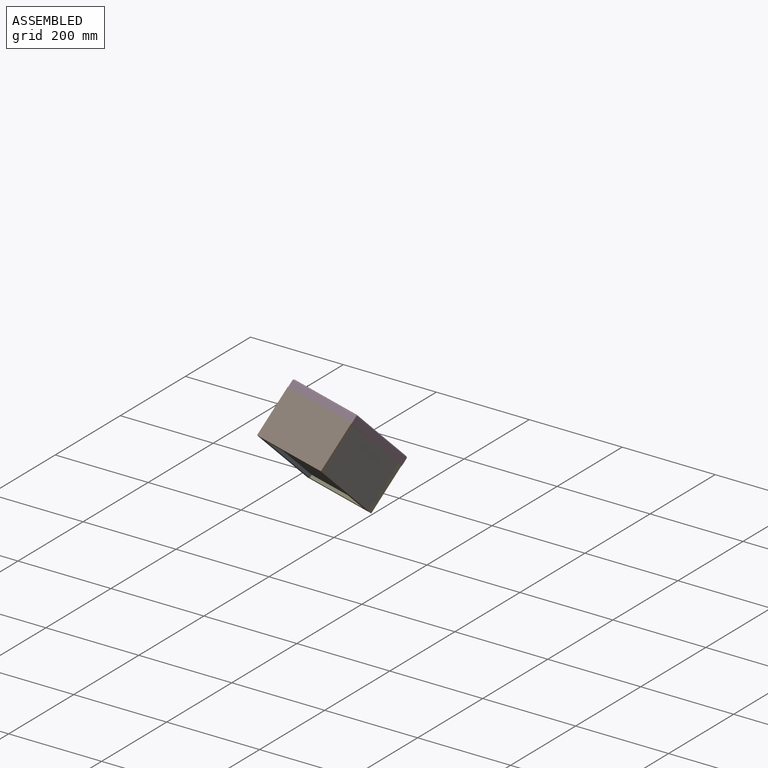
[diagram: assembled view]
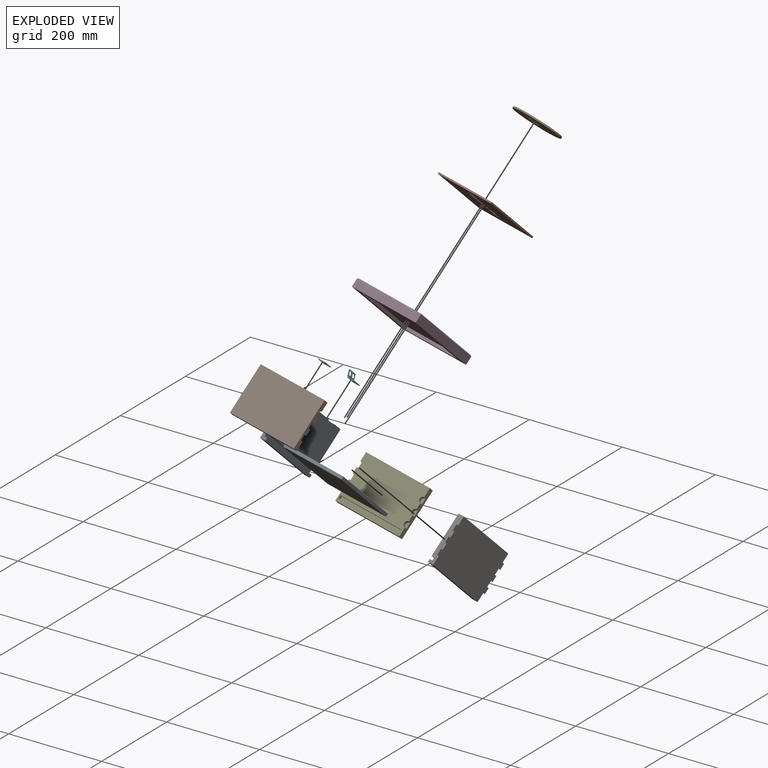
[diagram: exploded view]
GUIDED TOUR — MATED ASSEMBLY WITH SUBASSEMBLIES (Onshape document 33aced2103e464cf82bb9187, AutoMate assembly 33aced2103e464cf82bb9187_d0016f18dbe5ddd5e7f91160_2b6aa638e7e34dd8606e38a6_default)

This assembly has 12 component occurrences arranged in 10 top-level units: 8 individual components plus 2 subassemblies (S0, S1). The tour has two levels: first the top level, where each subassembly is treated as one rigid unit; then each subassembly is toured internally in its own section (nesting deeper than one subassembly level is flattened into its subassembly's section).

Components are labeled P0..P11 across the whole record; subassembly units are labeled S0..S1. A mate is a constraint between two units; its type names the relative motion it leaves free:
  FASTENED — locks the two components together rigidly (no relative motion),
  REVOLUTE — leaves rotation about the listed axis free (a hinge).
Axis/direction vectors are unit vectors and 'through' points are millimeter coordinates, both in the assembly's world frame.

TOP-LEVEL MATES (between units; each subassembly's internal mates are listed in its own section)
  1. FASTENED "Fastened 5": S1 <-> P0, direction (0.191, 0.659, 0.728) through (54.44, 19.80, -1.23) mm
  2. FASTENED "Fastened 6": S0 <-> P0, direction (0.191, 0.659, 0.728) through (56.53, -65.21, 75.15) mm
  3. FASTENED "Fastened 7": S0 <-> P3, direction (0.191, 0.659, 0.728) through (57.24, -65.20, 74.92) mm
  4. FASTENED "Fastened 1": P1 <-> P0, direction (-0.018, 0.744, -0.668) through (44.37, -130.27, 69.60) mm
  5. FASTENED "Fastened 8": P8 <-> P3, direction (0.191, 0.659, 0.728) through (125.93, -26.61, 30.46) mm
  6. FASTENED "Fastened 2": P6 <-> P1, direction (0.018, -0.744, 0.668) through (193.50, -130.32, 65.46) mm
  7. FASTENED "Fastened 9": P3 <-> P11, direction (0.191, 0.659, 0.728) through (124.58, -17.61, 35.76) mm
  8. FASTENED "Fastened 4": P0 <-> P10, direction (0.981, -0.114, -0.154) through (38.22, -82.30, -28.90) mm
  9. FASTENED "Fastened 3": P4 <-> P0, direction (0.018, -0.744, 0.668) through (40.66, 20.86, -66.19) mm

TOP-LEVEL ASSEMBLY ORDER
  1. P10 — the base component [order verified]
  2. P0 [order verified]
  3. S0 [order verified]
  4. P8 [order verified]
  5. S1 [order verified]
  6. P3 [order verified]
  7. P4 [order verified]
  8. P6 [order verified]
  9. P1 [order verified]
  10. P11 [order verified]
(P1, P3, P11 verified with a relaxed clearance tolerance: the source model stores slight part interference there.)
Order-tag legend:
  [order verified] — this step's position reverses a verified removal order: the component was checked to insert without passing through the ones already placed.

Of the 12 component occurrences, 7 carry the full construction recipe — the FeatureScript program that regenerates the part's solid from scratch; the rest are supplied as boundary geometry only. Each toured unit is shown spotlighted twice — assembled, then exploded with a leader line back to its socket (green = recipe-attached component, orange = geometry-only, blue = subassembly unit; the rest desaturated gray).
NOTE — this tour is split across 2 documents so each fits a 32k-token context. This is document 1: the component sections continue in the remaining 1 document, each repeating the header above.
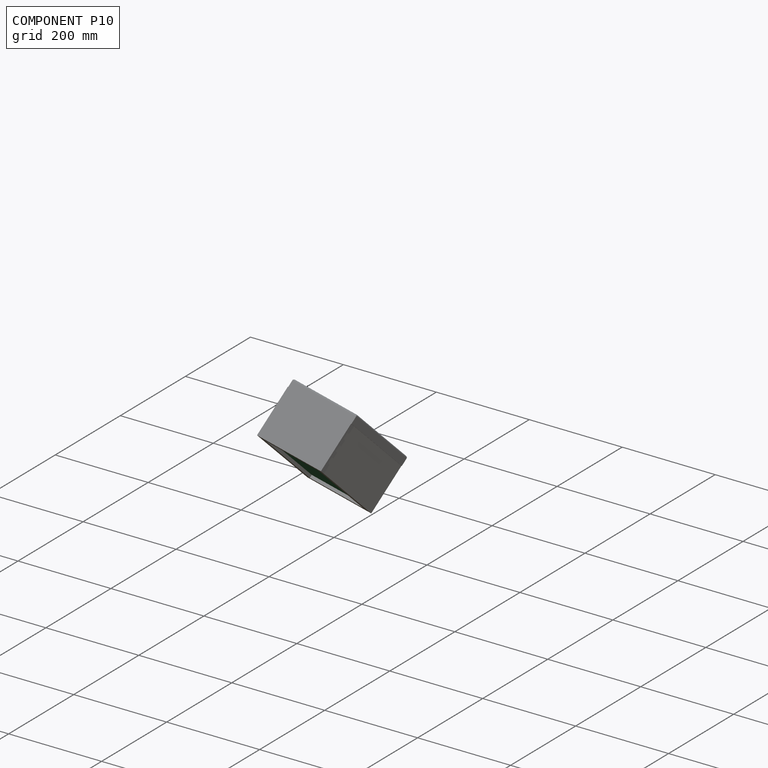
[diagram: component P10 — assembled]
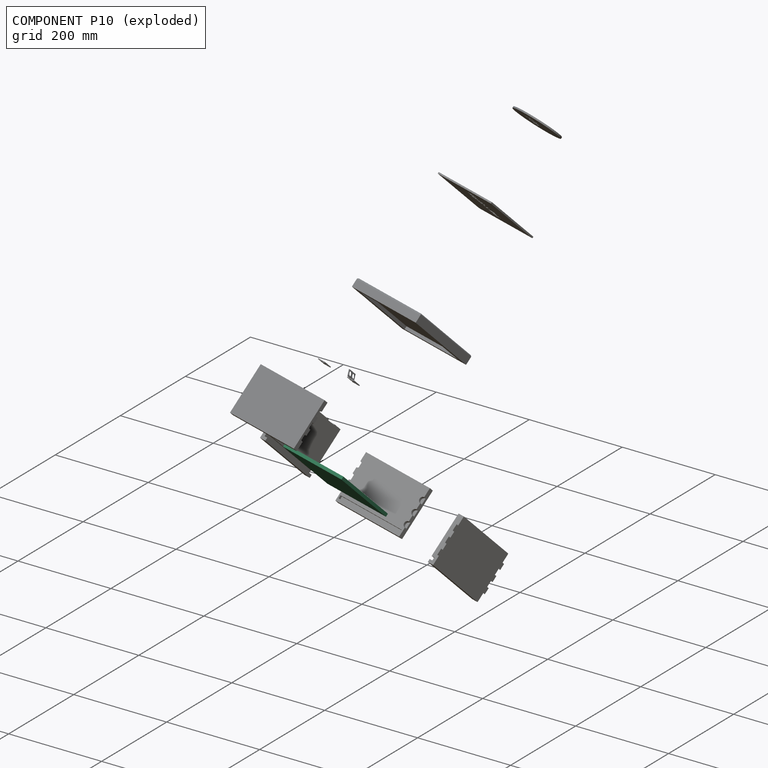
[diagram: component P10 — exploded]
COMPONENT P10 — recipe-attached (CADFS 00580430, mesh-verified: the recipe's output STEP matches this component's geometry to below the mesh-comparison resolution (tessellation chordal tolerance ~0.354 mm)).
Held by: FASTENED mate "Fastened 4" to P0.
Construction recipe (FeatureScript — the CAD program that rebuilds this solid; sketch coordinates are in the units given by the * unit suffixes, e.g. mm):

FeatureScript 1540;
import(path : "onshape/std/geometry.fs", version : "1540.0");
import(path : "onshape/std/common.fs", version : "1540.0");
const mm = millimeter;
const VERTEX = EntityType.VERTEX;
const EDGE = EntityType.EDGE;
const FACE = EntityType.FACE;
const BODY = EntityType.BODY;
function v(x, y){return vector(x, y);}
function OD(order){return orderDisambiguation(order);}
function OSD(set){return originalSetDisambiguation(set);}
function TD(topology){return topologyDisambiguation(topology);}
function TDD(query){return trueDependencyDisambiguation(query);}
function sQuery(a, b, c) {return sketchEntityQuery(a, b, c);}

annotation { "Feature Type Name" : "Feature", "Feature Type Description" : "" }
export const myFeature = defineFeature(function(context is Context, id is Id, definition is map)
    precondition{}
    {
        {
            var Q0;
            Q0=qCreatedBy(makeId("Front.planeOp"),FACE);
            var sketch = newSketch(context, id + "F0", { "sketchPlane" : qUnion([Q0])});
            skLineSegment(sketch, "E0.bottom", {"start": v(95.25, 3.18) * mm, "end": v(-95.25, 3.18) * mm});
            skLineSegment(sketch, "E0.top", {"start": v(95.25, -3.17) * mm, "end": v(-95.25, -3.17) * mm});
            skLineSegment(sketch, "E0.left", {"start": v(95.25, 3.18) * mm, "end": v(95.25, -3.17) * mm});
            skLineSegment(sketch, "E0.right", {"start": v(-95.25, 3.18) * mm, "end": v(-95.25, -3.17) * mm});
            skPoint(sketch, "E0.middle", {"position": v(0, 0) * mm});
            skSolve(sketch);
        }
        {
            var Q0;
            Q0=makeQuery(id+"F0.imprint","IMPRINT",FACE,{"disambiguationData":[TD([[makeQuery(id+"F0.imprint","IMPRINT",EDGE,{"derivedFrom":sQuery(id+"F0.wireOp",EDGE,"E0.bottom")}),1.0]])]});
            extrude(context, id + "F1", {"entities" : qUnion([Q0]), "depth" : 139.7 * mm, "offsetDistance" : 25.4 * mm});
        }
    });
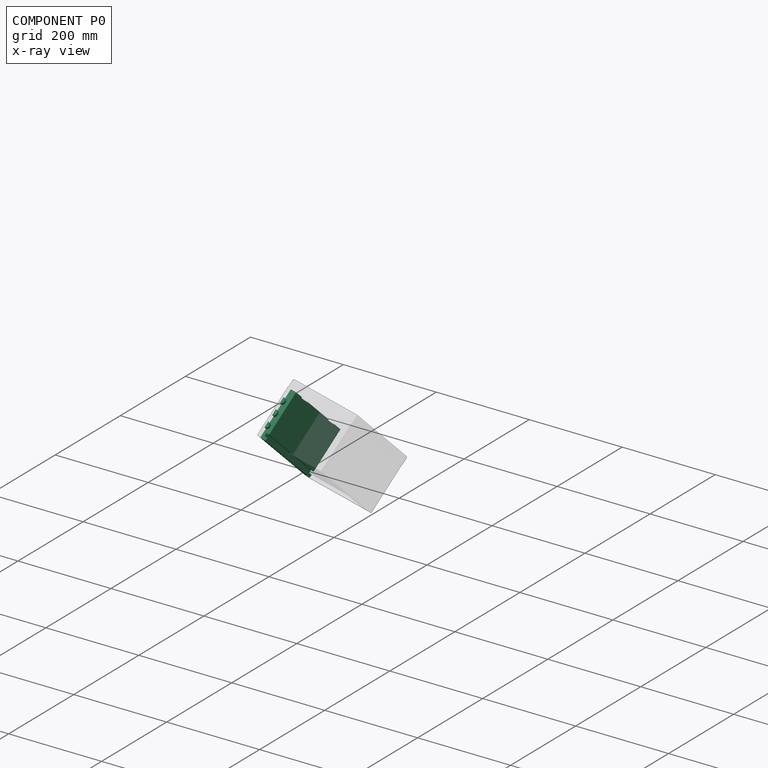
[diagram: component P0 — x-ray view]
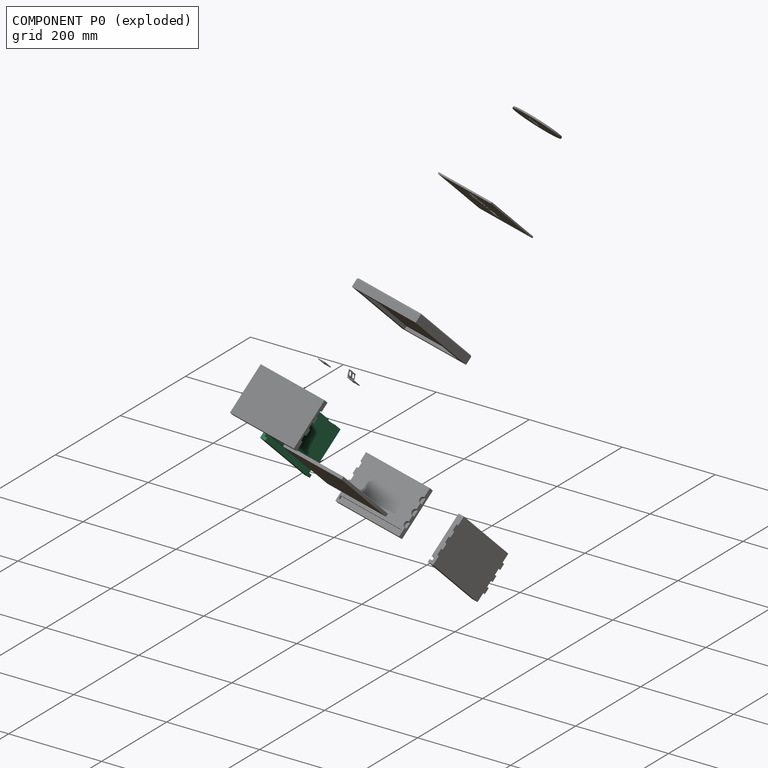
[diagram: component P0 — exploded]
COMPONENT P0 — recipe-attached (CADFS 00580432, mesh-verified: the recipe's output STEP matches this component's geometry to below the mesh-comparison resolution (tessellation chordal tolerance ~0.341 mm)).
Held by: FASTENED mate "Fastened 5" to P5; FASTENED mate "Fastened 6" to P2; FASTENED mate "Fastened 1" to P1; FASTENED mate "Fastened 4" to P10; FASTENED mate "Fastened 3" to P4.
Construction recipe (FeatureScript — the CAD program that rebuilds this solid; sketch coordinates are in the units given by the * unit suffixes, e.g. mm):

FeatureScript 1540;
import(path : "onshape/std/geometry.fs", version : "1540.0");
import(path : "onshape/std/common.fs", version : "1540.0");
const mm = millimeter;
const VERTEX = EntityType.VERTEX;
const EDGE = EntityType.EDGE;
const FACE = EntityType.FACE;
const BODY = EntityType.BODY;
function v(x, y){return vector(x, y);}
function OD(order){return orderDisambiguation(order);}
function OSD(set){return originalSetDisambiguation(set);}
function TD(topology){return topologyDisambiguation(topology);}
function TDD(query){return trueDependencyDisambiguation(query);}
function sQuery(a, b, c) {return sketchEntityQuery(a, b, c);}

annotation { "Feature Type Name" : "Feature", "Feature Type Description" : "" }
export const myFeature = defineFeature(function(context is Context, id is Id, definition is map)
    precondition{}
    {
        {
            var Q0;
            Q0=qCreatedBy(makeId("Front.planeOp"),FACE);
            var sketch = newSketch(context, id + "F0", { "sketchPlane" : qUnion([Q0])});
            skLineSegment(sketch, "E0.bottom", {"start": v(104.93, 50.8) * mm, "end": v(-98.27, 50.8) * mm});
            skLineSegment(sketch, "E0.top", {"start": v(104.93, -50.8) * mm, "end": v(-98.27, -50.8) * mm});
            skLineSegment(sketch, "E0.left", {"start": v(104.93, 50.8) * mm, "end": v(104.93, -50.8) * mm});
            skLineSegment(sketch, "E0.right", {"start": v(-98.27, 50.8) * mm, "end": v(-98.27, -50.8) * mm});
            skPoint(sketch, "E0.middle", {"position": v(3.33, 0) * mm});
            skSolve(sketch);
        }
        {
            var Q0;
            Q0=makeQuery(id+"F0.imprint","IMPRINT",FACE,{"disambiguationData":[TD([[makeQuery(id+"F0.imprint","IMPRINT",EDGE,{"derivedFrom":sQuery(id+"F0.wireOp",EDGE,"E0.bottom")}),1.0]])]});
            extrude(context, id + "F1", {"entities" : qUnion([Q0]), "depth" : 12.7 * mm, "offsetDistance" : 25.4 * mm});
        }
        {
            var Q0;
            Q0=makeQuery(id+"F1.opExtrude","CAP_FACE",FACE,{"disambiguationData":[OSD([sQuery(id+"F0.wireOp",EDGE,"E0.bottom"),sQuery(id+"F0.wireOp",EDGE,"E0.top"),sQuery(id+"F0.wireOp",EDGE,"E0.left"),sQuery(id+"F0.wireOp",EDGE,"E0.right")])],"isStart":true});
            var sketch = newSketch(context, id + "F2", { "sketchPlane" : qUnion([Q0])});
            skLineSegment(sketch, "E1.bottom", {"start": v(-104.93, -38.1) * mm, "end": v(98.27, -38.1) * mm});
            skLineSegment(sketch, "E1.top", {"start": v(-104.93, -44.45) * mm, "end": v(98.27, -44.45) * mm});
            skLineSegment(sketch, "E1.left", {"start": v(-104.93, -38.1) * mm, "end": v(-104.93, -44.45) * mm});
            skLineSegment(sketch, "E1.right", {"start": v(98.27, -38.1) * mm, "end": v(98.27, -44.45) * mm});
            skSolve(sketch);
        }
        {
            var Q0;
            Q0=makeQuery(id+"F2.imprint","IMPRINT",FACE,{"disambiguationData":[TD([[makeQuery(id+"F2.imprint","IMPRINT",EDGE,{"derivedFrom":sQuery(id+"F2.wireOp",EDGE,"E1.bottom")}),-1.0]])]});
            extrude(context, id + "F3", {"entities" : qUnion([Q0]), "operationType" : NewBodyOperationType.REMOVE, "oppositeDirection" : true, "depth" : 6.35 * mm, "offsetDistance" : 25.4 * mm});
        }
        {
            var Q0;
            Q0=makeQuery(id+"F1.opExtrude","SWEPT_FACE",FACE,{"disambiguationData":[OSD([sQuery(id+"F0.wireOp",EDGE,"E0.right")])]});
            var sketch = newSketch(context, id + "F4", { "sketchPlane" : qUnion([Q0])});
            skArc(sketch, "E2", {"start": v(12.7, 31.75) * mm, "mid": v(6.35, 25.4) * mm, "end": v(12.7, 19.05) * mm});
            skArc(sketch, "E3", {"start": v(12.7, 6.35) * mm, "mid": v(6.35, 0) * mm, "end": v(12.7, -6.35) * mm});
            skArc(sketch, "E4", {"start": v(12.7, -19.05) * mm, "mid": v(6.35, -25.4) * mm, "end": v(12.7, -31.75) * mm});
            skSolve(sketch);
        }
        {
            var Q0;
            Q0 = qSketchRegion(id + "F4", true);
            var Q1;
            {var subQ10=sQuery(id+"F4.wireOp",EDGE,"E2");Q1=makeQuery(id+"F4.imprint","IMPRINT",FACE,{"disambiguationData":[TD([[makeQuery(id+"F4.imprint","IMPRINT",EDGE,{"derivedFrom":subQ10}),-1.0]])]});}
            extrude(context, id + "F5", {"entities" : qUnion([Q0, Q1]), "operationType" : NewBodyOperationType.REMOVE, "oppositeDirection" : true, "depth" : 6.35 * mm, "offsetDistance" : 25.4 * mm});
        }
        {
            var Q0;
            Q0=makeQuery(id+"F1.opExtrude","SWEPT_FACE",FACE,{"disambiguationData":[OSD([sQuery(id+"F0.wireOp",EDGE,"E0.left")])]});
            var sketch = newSketch(context, id + "F6", { "sketchPlane" : qUnion([Q0])});
            skArc(sketch, "E5", {"start": v(-12.7, 19.05) * mm, "mid": v(-6.35, 25.4) * mm, "end": v(-12.7, 31.75) * mm});
            skArc(sketch, "E6", {"start": v(-12.7, -6.35) * mm, "mid": v(-6.35, 0) * mm, "end": v(-12.7, 6.35) * mm});
            skArc(sketch, "E7", {"start": v(-12.7, -31.75) * mm, "mid": v(-6.35, -25.4) * mm, "end": v(-12.7, -19.05) * mm});
            skSolve(sketch);
        }
        {
            var Q0;
            Q0 = qSketchRegion(id + "F6", true);
            var Q1;
            {var subQ10=sQuery(id+"F6.wireOp",EDGE,"E5");Q1=makeQuery(id+"F6.imprint","IMPRINT",FACE,{"disambiguationData":[TD([[makeQuery(id+"F6.imprint","IMPRINT",EDGE,{"derivedFrom":subQ10}),-1.0]])]});}
            extrude(context, id + "F7", {"entities" : qUnion([Q0, Q1]), "operationType" : NewBodyOperationType.REMOVE, "oppositeDirection" : true, "depth" : 6.35 * mm, "offsetDistance" : 25.4 * mm});
        }
        {
            var Q0;
            Q0=makeQuery(id+"F1.opExtrude","SWEPT_FACE",FACE,{"disambiguationData":[OSD([sQuery(id+"F0.wireOp",EDGE,"E0.bottom")])]});
            var sketch = newSketch(context, id + "F8", { "sketchPlane" : qUnion([Q0])});
            skLineSegment(sketch, "E8.bottom", {"start": v(-66.52, 0) * mm, "end": v(-41.12, 0) * mm});
            skLineSegment(sketch, "E8.top", {"start": v(-66.52, -12.7) * mm, "end": v(-41.12, -12.7) * mm});
            skLineSegment(sketch, "E8.left", {"start": v(-66.52, 0) * mm, "end": v(-66.52, -12.7) * mm});
            skLineSegment(sketch, "E8.right", {"start": v(-41.12, 0) * mm, "end": v(-41.12, -12.7) * mm});
            skLineSegment(sketch, "E9.bottom", {"start": v(47.78, 0) * mm, "end": v(73.18, 0) * mm});
            skLineSegment(sketch, "E9.top", {"start": v(47.78, -12.7) * mm, "end": v(73.18, -12.7) * mm});
            skLineSegment(sketch, "E9.left", {"start": v(47.78, 0) * mm, "end": v(47.78, -12.7) * mm});
            skLineSegment(sketch, "E9.right", {"start": v(73.18, 0) * mm, "end": v(73.18, -12.7) * mm});
            skSolve(sketch);
        }
        {
            var Q0;
            Q0 = qSketchRegion(id + "F8", true);
            extrude(context, id + "F9", {"entities" : qUnion([Q0]), "operationType" : NewBodyOperationType.REMOVE, "oppositeDirection" : true, "depth" : 1.59 * mm, "offsetDistance" : 25.4 * mm});
        }
        {
            var Q0;
            Q0=makeQuery(id+"F9.boolean.opBoolean","COPY",FACE,{"derivedFrom":makeQuery(id+"F9.opExtrude","CAP_FACE",FACE,{"disambiguationData":[OSD([sQuery(id+"F8.wireOp",EDGE,"E8.bottom"),sQuery(id+"F8.wireOp",EDGE,"E8.top"),sQuery(id+"F8.wireOp",EDGE,"E8.left"),sQuery(id+"F8.wireOp",EDGE,"E8.right")])],"isStart":false})});
            var sketch = newSketch(context, id + "F10", { "sketchPlane" : qUnion([Q0])});
            skCircle(sketch, "E10", {"center": v(-60.17, -6.35) * mm, "radius": 1.59 * mm});
            skCircle(sketch, "E11", {"center": v(-47.47, -6.35) * mm, "radius": 1.59 * mm});
            skSolve(sketch);
        }
        {
            var Q0;
            Q0 = qSketchRegion(id + "F10", true);
            extrude(context, id + "F11", {"entities" : qUnion([Q0]), "operationType" : NewBodyOperationType.REMOVE, "oppositeDirection" : true, "depth" : 6.35 * mm, "offsetDistance" : 25.4 * mm});
        }
        {
            var Q0;
            Q0=makeQuery(id+"F9.boolean.opBoolean","COPY",FACE,{"derivedFrom":makeQuery(id+"F9.opExtrude","CAP_FACE",FACE,{"disambiguationData":[OSD([sQuery(id+"F8.wireOp",EDGE,"E9.bottom"),sQuery(id+"F8.wireOp",EDGE,"E9.top"),sQuery(id+"F8.wireOp",EDGE,"E9.left"),sQuery(id+"F8.wireOp",EDGE,"E9.right")])],"isStart":false})});
            var sketch = newSketch(context, id + "F12", { "sketchPlane" : qUnion([Q0])});
            skCircle(sketch, "E12", {"center": v(54.13, -6.35) * mm, "radius": 1.59 * mm});
            skCircle(sketch, "E13", {"center": v(66.83, -6.35) * mm, "radius": 1.59 * mm});
            skSolve(sketch);
        }
        {
            var Q0;
            Q0 = qSketchRegion(id + "F12", true);
            extrude(context, id + "F13", {"entities" : qUnion([Q0]), "operationType" : NewBodyOperationType.REMOVE, "oppositeDirection" : true, "depth" : 6.35 * mm, "offsetDistance" : 25.4 * mm});
        }
    });
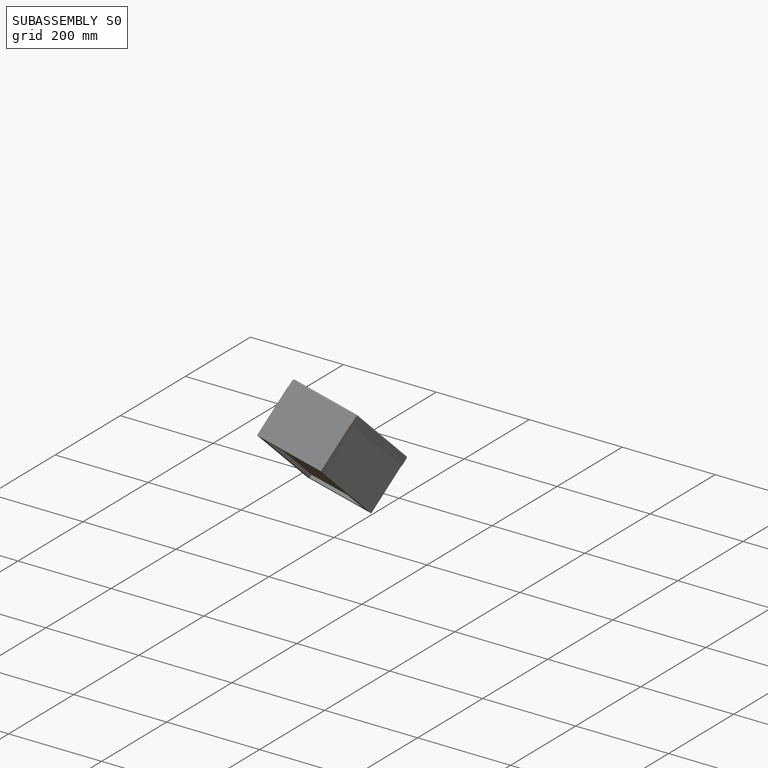
[diagram: subassembly S0 — assembled]
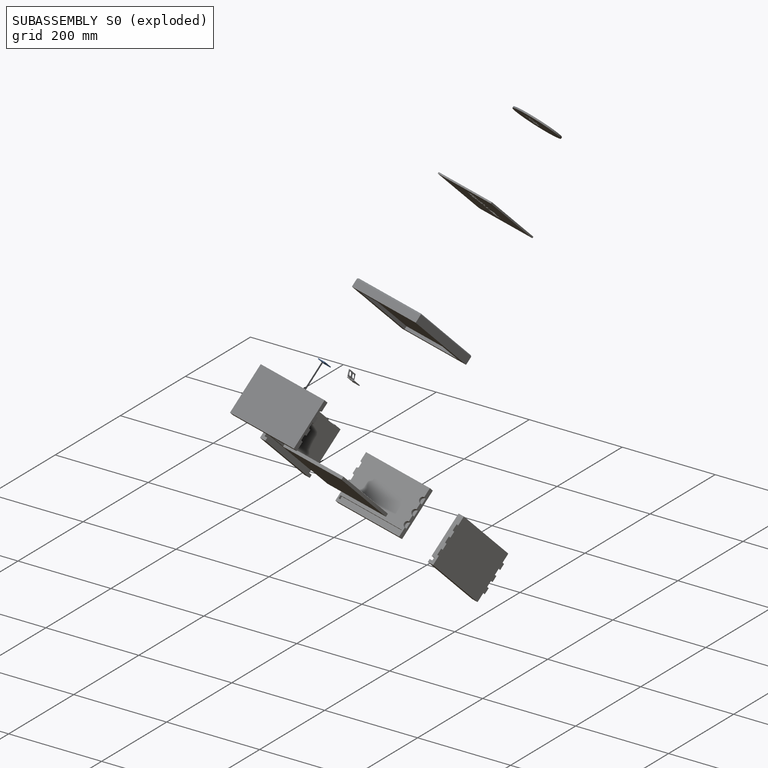
[diagram: subassembly S0 — exploded]
SUBASSEMBLY S0 — 2 components (P2, P7), of which 0 recipe-attached; toured below.
Held by: FASTENED mate "Fastened 6" to P0; FASTENED mate "Fastened 7" to P3.
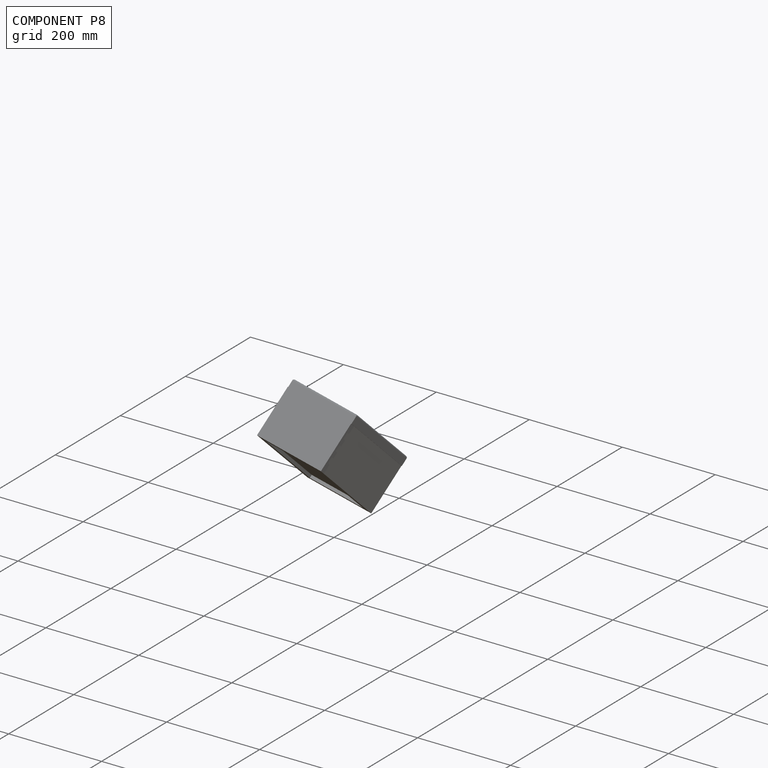
[diagram: component P8 — assembled]
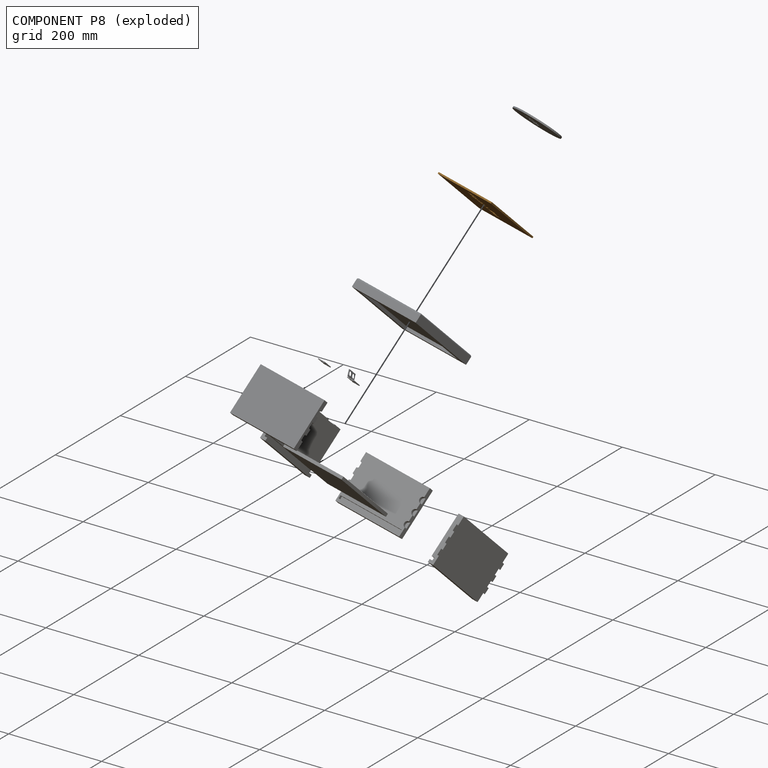
[diagram: component P8 — exploded]
COMPONENT P8 — geometry summary (no construction recipe available for this part):
  bounding box: 177.8 x 127.0 x 3.2 mm
  B-rep topology: 1 solid, 146 faces, 864 edges
  volume: 68864 mm^3 (96% of its bounding box)
  symmetry: mirror-symmetric across its y mid-plane
Held by: FASTENED mate "Fastened 8" to P3.
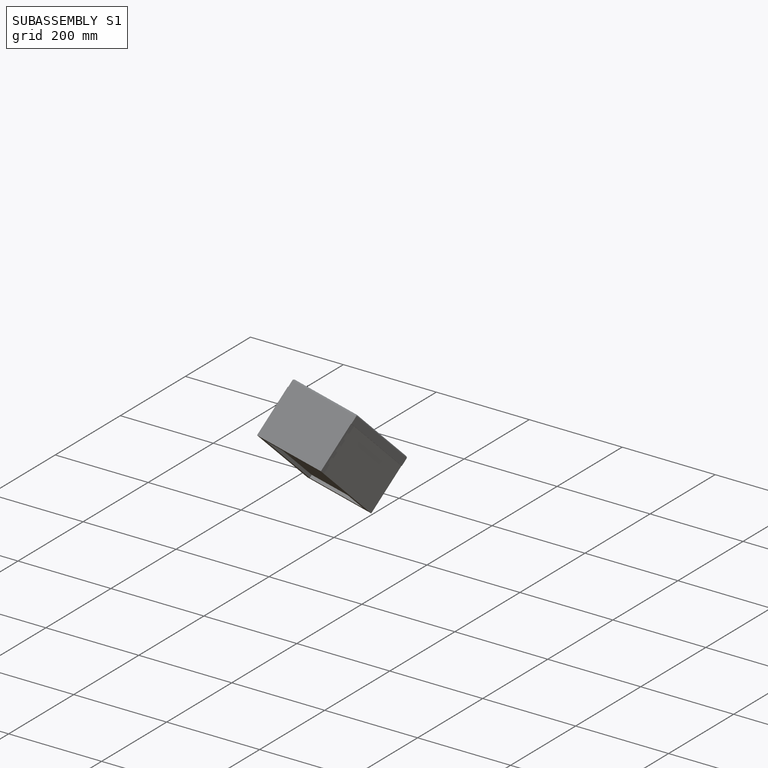
[diagram: subassembly S1 — assembled]
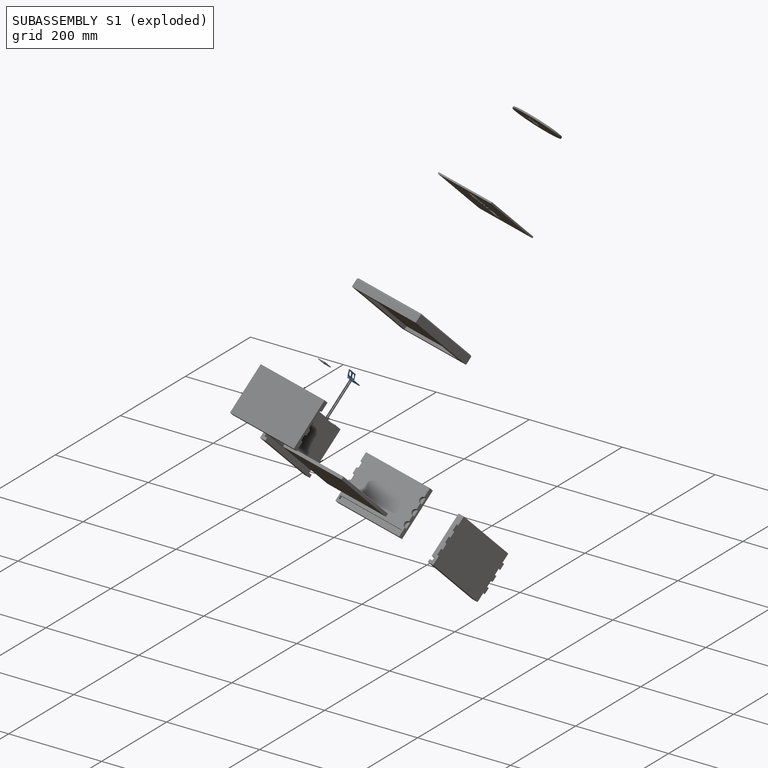
[diagram: subassembly S1 — exploded]
SUBASSEMBLY S1 — 2 components (P5, P9), of which 0 recipe-attached; toured below.
Held by: FASTENED mate "Fastened 5" to P0.
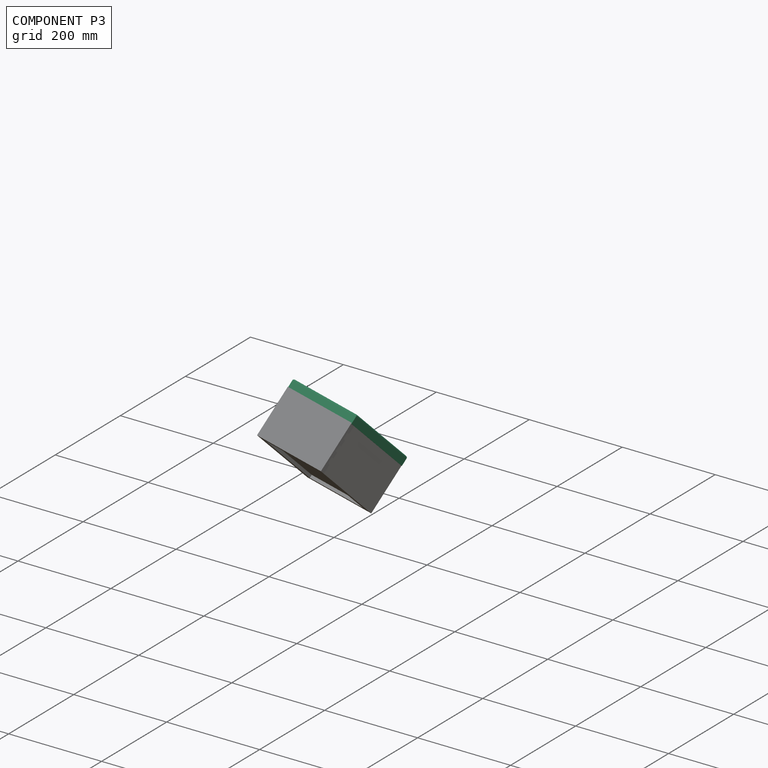
[diagram: component P3 — assembled]
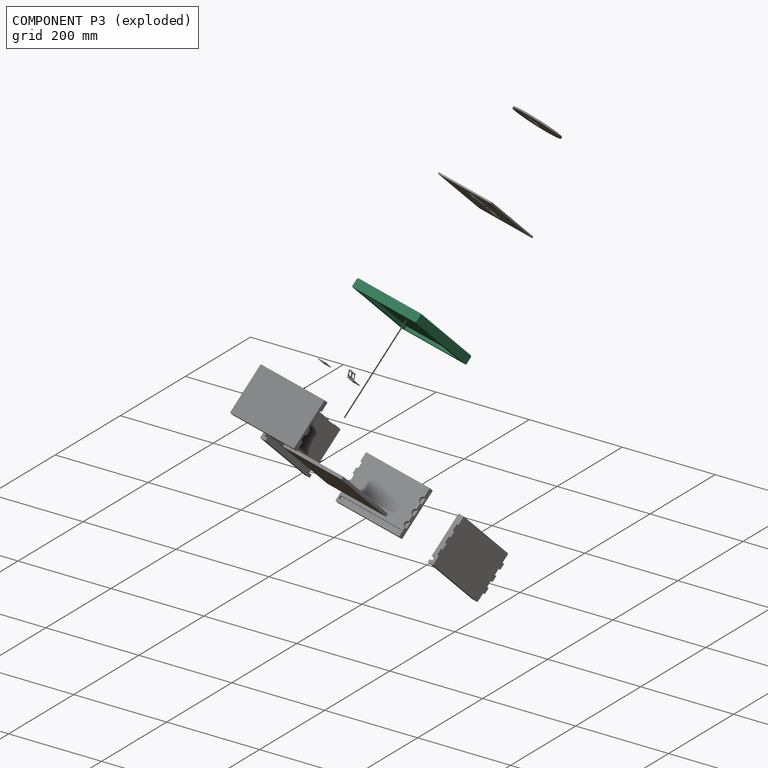
[diagram: component P3 — exploded]
COMPONENT P3 — recipe-attached (CADFS 00580435, mesh-verified: the recipe's output STEP matches this component's geometry to below the mesh-comparison resolution (tessellation chordal tolerance ~0.397 mm)).
Held by: FASTENED mate "Fastened 7" to P2; FASTENED mate "Fastened 8" to P8; FASTENED mate "Fastened 9" to P11.
Construction recipe (FeatureScript — the CAD program that rebuilds this solid; sketch coordinates are in the units given by the * unit suffixes, e.g. mm):

FeatureScript 1540;
import(path : "onshape/std/geometry.fs", version : "1540.0");
import(path : "onshape/std/common.fs", version : "1540.0");
const mm = millimeter;
const VERTEX = EntityType.VERTEX;
const EDGE = EntityType.EDGE;
const FACE = EntityType.FACE;
const BODY = EntityType.BODY;
function v(x, y){return vector(x, y);}
function OD(order){return orderDisambiguation(order);}
function OSD(set){return originalSetDisambiguation(set);}
function TD(topology){return topologyDisambiguation(topology);}
function TDD(query){return trueDependencyDisambiguation(query);}
function sQuery(a, b, c) {return sketchEntityQuery(a, b, c);}

annotation { "Feature Type Name" : "Feature", "Feature Type Description" : "" }
export const myFeature = defineFeature(function(context is Context, id is Id, definition is map)
    precondition{}
    {
        {
            var Q0;
            Q0=qCreatedBy(makeId("Front.planeOp"),FACE);
            var sketch = newSketch(context, id + "F0", { "sketchPlane" : qUnion([Q0])});
            skLineSegment(sketch, "E0.bottom", {"start": v(-107.95, 9.53) * mm, "end": v(107.95, 9.53) * mm});
            skLineSegment(sketch, "E0.top", {"start": v(-107.95, -9.52) * mm, "end": v(107.95, -9.52) * mm});
            skLineSegment(sketch, "E0.left", {"start": v(-107.95, 9.53) * mm, "end": v(-107.95, -9.52) * mm});
            skLineSegment(sketch, "E0.right", {"start": v(107.95, 9.53) * mm, "end": v(107.95, -9.52) * mm});
            skPoint(sketch, "E0.middle", {"position": v(0, 0) * mm});
            skSolve(sketch);
        }
        {
            var Q0;
            Q0 = qSketchRegion(id + "F0", true);
            extrude(context, id + "F1", {"entities" : qUnion([Q0]), "depth" : 152.4 * mm, "offsetDistance" : 25.4 * mm});
        }
        {
            var Q0;
            Q0=makeQuery(id+"F1.opExtrude","SWEPT_FACE",FACE,{"disambiguationData":[OSD([sQuery(id+"F0.wireOp",EDGE,"E0.top")])]});
            var sketch = newSketch(context, id + "F2", { "sketchPlane" : qUnion([Q0])});
            skLineSegment(sketch, "E1.bottom", {"start": v(-95.25, 139.7) * mm, "end": v(95.25, 139.7) * mm});
            skLineSegment(sketch, "E1.top", {"start": v(-95.25, 12.7) * mm, "end": v(95.25, 12.7) * mm});
            skLineSegment(sketch, "E1.left", {"start": v(-95.25, 139.7) * mm, "end": v(-95.25, 12.7) * mm});
            skLineSegment(sketch, "E1.right", {"start": v(95.25, 139.7) * mm, "end": v(95.25, 12.7) * mm});
            skSolve(sketch);
        }
        {
            var Q0;
            Q0 = qSketchRegion(id + "F2", true);
            extrude(context, id + "F3", {"entities" : qUnion([Q0]), "operationType" : NewBodyOperationType.REMOVE, "oppositeDirection" : true, "depth" : 6.35 * mm, "offsetDistance" : 25.4 * mm});
        }
        {
            var Q0;
            Q0=makeQuery(id+"F1.opExtrude","SWEPT_FACE",FACE,{"disambiguationData":[OSD([sQuery(id+"F0.wireOp",EDGE,"E0.top")])]});
            var sketch = newSketch(context, id + "F4", { "sketchPlane" : qUnion([Q0])});
            skLineSegment(sketch, "E2.bottom", {"start": v(-69.85, 12.7) * mm, "end": v(-44.45, 12.7) * mm});
            skLineSegment(sketch, "E2.top", {"start": v(-69.85, 0) * mm, "end": v(-44.45, 0) * mm});
            skLineSegment(sketch, "E2.left", {"start": v(-69.85, 12.7) * mm, "end": v(-69.85, 0) * mm});
            skLineSegment(sketch, "E2.right", {"start": v(-44.45, 12.7) * mm, "end": v(-44.45, 0) * mm});
            skPoint(sketch, "E3.oppositeSnap0", {"position": v(-57.15, 0) * mm});
            skLineSegment(sketch, "E3.bottom", {"start": v(44.45, 12.7) * mm, "end": v(69.85, 12.7) * mm});
            skLineSegment(sketch, "E3.top", {"start": v(44.45, 0) * mm, "end": v(69.85, 0) * mm});
            skLineSegment(sketch, "E3.left", {"start": v(44.45, 12.7) * mm, "end": v(44.45, 0) * mm});
            skLineSegment(sketch, "E3.right", {"start": v(69.85, 12.7) * mm, "end": v(69.85, 0) * mm});
            skSolve(sketch);
        }
        {
            var Q0;
            Q0 = qSketchRegion(id + "F4", true);
            extrude(context, id + "F5", {"entities" : qUnion([Q0]), "operationType" : NewBodyOperationType.REMOVE, "oppositeDirection" : true, "depth" : 0.16 * mm, "offsetDistance" : 25.4 * mm});
        }
        {
            var Q0;
            Q0=makeQuery(id+"F1.opExtrude","SWEPT_FACE",FACE,{"disambiguationData":[OSD([sQuery(id+"F0.wireOp",EDGE,"E0.bottom")])]});
            fillet(context, id + "F6", {"entities" : qUnion([Q0]), "radius" : 3.17 * mm, "tangentPropagation" : true, "allowEdgeOverflow" : false});
        }
        {
            var Q0;
            Q0=makeQuery(id+"F1.opExtrude","SWEPT_FACE",FACE,{"disambiguationData":[OSD([sQuery(id+"F0.wireOp",EDGE,"E0.bottom")])]});
            var sketch = newSketch(context, id + "F7", { "sketchPlane" : qUnion([Q0])});
            skCircle(sketch, "E4", {"center": v(3.17, -73.02) * mm, "radius": 50.8 * mm});
            skSolve(sketch);
        }
        {
            var Q0;
            Q0 = qSketchRegion(id + "F7", true);
            extrude(context, id + "F8", {"entities" : qUnion([Q0]), "operationType" : NewBodyOperationType.REMOVE, "oppositeDirection" : true, "depth" : 3.17 * mm, "offsetDistance" : 25.4 * mm});
        }
    });
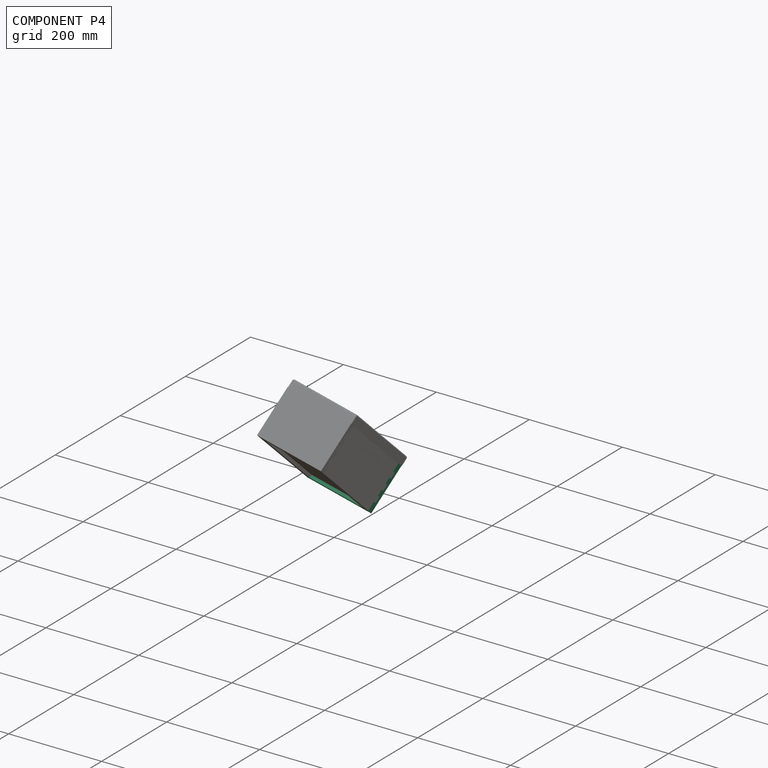
[diagram: component P4 — assembled]
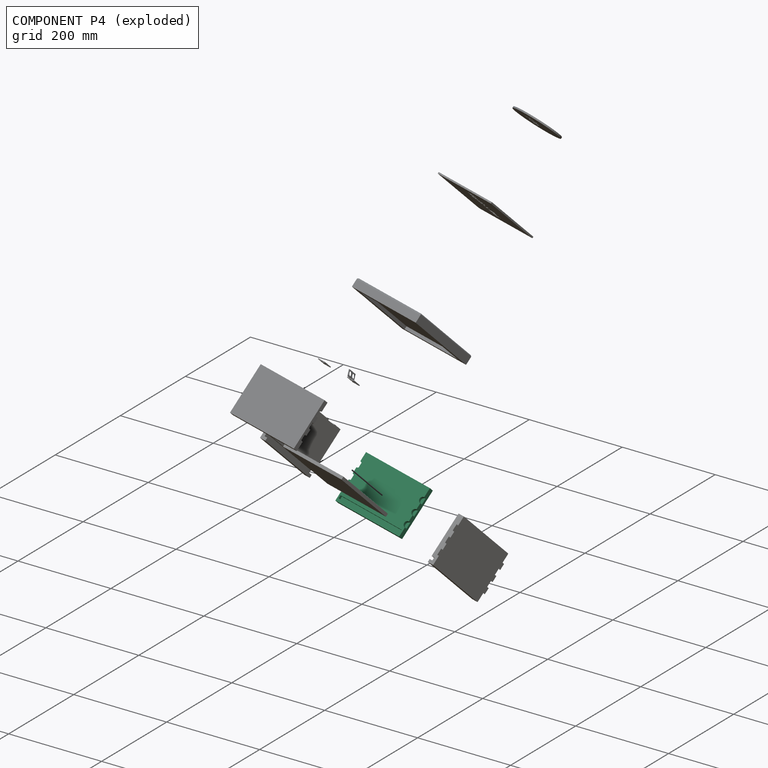
[diagram: component P4 — exploded]
COMPONENT P4 — same part as P1 (CADFS 00580429); its construction recipe is shown at P1.
Held by: FASTENED mate "Fastened 3" to P0.
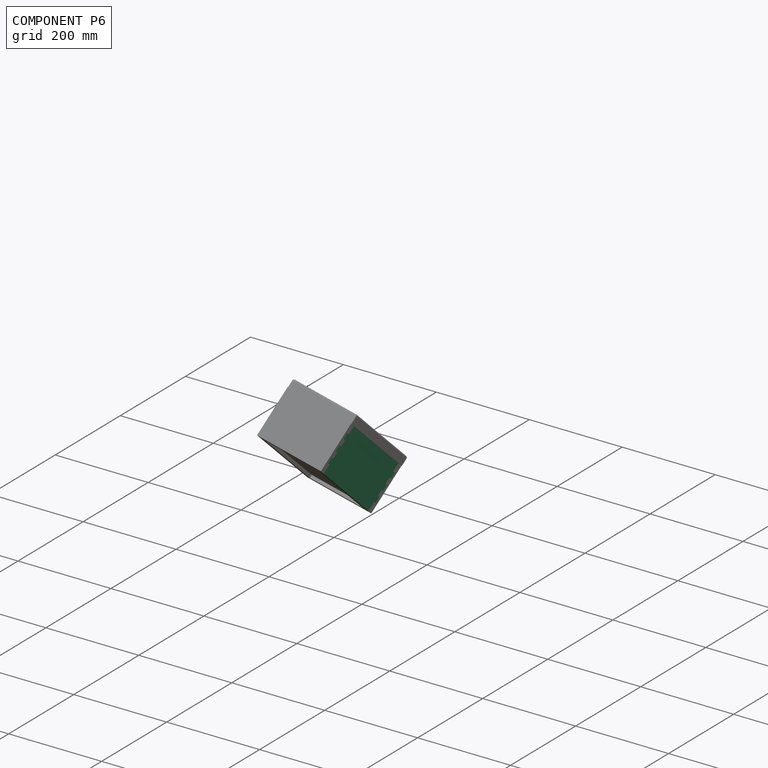
[diagram: component P6 — assembled]
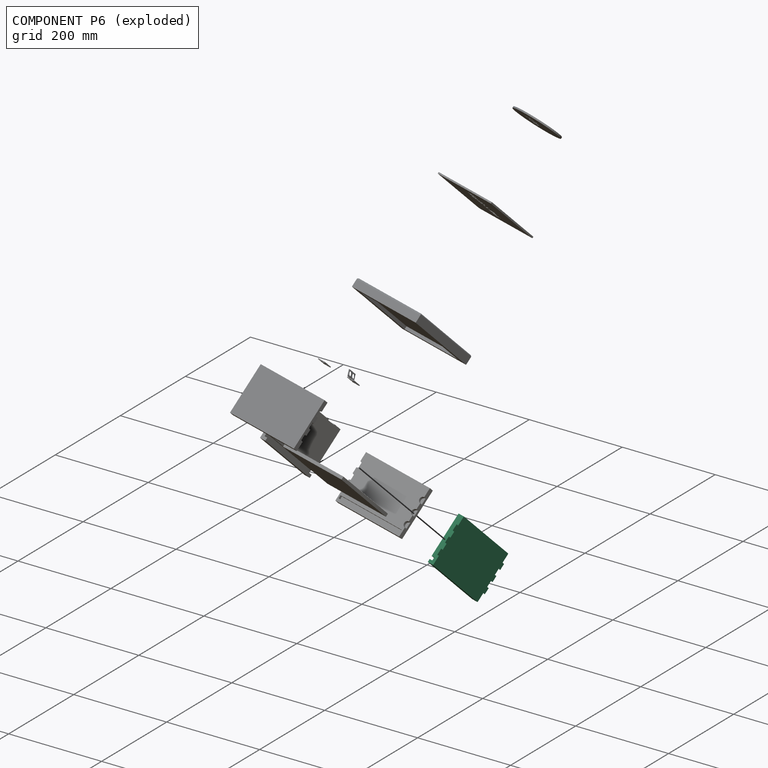
[diagram: component P6 — exploded]
COMPONENT P6 — recipe-attached (CADFS 00580431, mesh-verified: the recipe's output STEP matches this component's geometry to below the mesh-comparison resolution (tessellation chordal tolerance ~0.341 mm)).
Held by: FASTENED mate "Fastened 2" to P1.
Construction recipe (FeatureScript — the CAD program that rebuilds this solid; sketch coordinates are in the units given by the * unit suffixes, e.g. mm):

FeatureScript 1540;
import(path : "onshape/std/geometry.fs", version : "1540.0");
import(path : "onshape/std/common.fs", version : "1540.0");
const mm = millimeter;
const VERTEX = EntityType.VERTEX;
const EDGE = EntityType.EDGE;
const FACE = EntityType.FACE;
const BODY = EntityType.BODY;
function v(x, y){return vector(x, y);}
function OD(order){return orderDisambiguation(order);}
function OSD(set){return originalSetDisambiguation(set);}
function TD(topology){return topologyDisambiguation(topology);}
function TDD(query){return trueDependencyDisambiguation(query);}
function sQuery(a, b, c) {return sketchEntityQuery(a, b, c);}

annotation { "Feature Type Name" : "Feature", "Feature Type Description" : "" }
export const myFeature = defineFeature(function(context is Context, id is Id, definition is map)
    precondition{}
    {
        {
            var Q0;
            Q0=qCreatedBy(makeId("Front.planeOp"),FACE);
            var sketch = newSketch(context, id + "F0", { "sketchPlane" : qUnion([Q0])});
            skLineSegment(sketch, "E0.bottom", {"start": v(-101.6, 50.8) * mm, "end": v(101.6, 50.8) * mm});
            skLineSegment(sketch, "E0.top", {"start": v(-101.6, -50.8) * mm, "end": v(101.6, -50.8) * mm});
            skLineSegment(sketch, "E0.left", {"start": v(-101.6, 50.8) * mm, "end": v(-101.6, -50.8) * mm});
            skLineSegment(sketch, "E0.right", {"start": v(101.6, 50.8) * mm, "end": v(101.6, -50.8) * mm});
            skPoint(sketch, "E0.middle", {"position": v(0, 0) * mm});
            skLineSegment(sketch, "E1.left", {"start": v(101.6, -38.1) * mm, "end": v(101.6, -44.45) * mm});
            skLineSegment(sketch, "E1.right", {"start": v(-101.6, -38.1) * mm, "end": v(-101.6, -44.45) * mm});
            skSolve(sketch);
        }
        {
            var Q0;
            {var subQ3=sQuery(id+"F0.wireOp",EDGE,"E0.bottom");Q0=makeQuery(id+"F0.imprint","IMPRINT",FACE,{"disambiguationData":[TD([[makeQuery(id+"F0.imprint","IMPRINT",EDGE,{"derivedFrom":subQ3}),-1.0]])]});}
            extrude(context, id + "F1", {"entities" : qUnion([Q0]), "depth" : 12.7 * mm, "offsetDistance" : 25.4 * mm});
        }
        {
            var Q0;
            Q0=makeQuery(id+"F1.opExtrude","CAP_FACE",FACE,{"disambiguationData":[OSD([sQuery(id+"F0.wireOp",EDGE,"E0.bottom"),sQuery(id+"F0.wireOp",EDGE,"E0.top"),sQuery(id+"F0.wireOp",EDGE,"E0.left"),sQuery(id+"F0.wireOp",EDGE,"E0.right"),sQuery(id+"F0.wireOp",EDGE,"E1.left"),sQuery(id+"F0.wireOp",EDGE,"E1.right")])],"isStart":true});
            var sketch = newSketch(context, id + "F2", { "sketchPlane" : qUnion([Q0])});
            skLineSegment(sketch, "E2.bottom", {"start": v(-101.6, -38.1) * mm, "end": v(101.6, -38.1) * mm});
            skLineSegment(sketch, "E2.top", {"start": v(-101.6, -44.45) * mm, "end": v(101.6, -44.45) * mm});
            skLineSegment(sketch, "E2.left", {"start": v(-101.6, -38.1) * mm, "end": v(-101.6, -44.45) * mm});
            skLineSegment(sketch, "E2.right", {"start": v(101.6, -38.1) * mm, "end": v(101.6, -44.45) * mm});
            skSolve(sketch);
        }
        {
            var Q0;
            Q0=makeQuery(id+"F2.imprint","IMPRINT",FACE,{"disambiguationData":[TD([[makeQuery(id+"F2.imprint","IMPRINT",EDGE,{"derivedFrom":sQuery(id+"F2.wireOp",EDGE,"E2.bottom")}),-1.0]])]});
            extrude(context, id + "F3", {"entities" : qUnion([Q0]), "operationType" : NewBodyOperationType.REMOVE, "oppositeDirection" : true, "depth" : 6.35 * mm, "offsetDistance" : 25.4 * mm});
        }
        {
            var Q0;
            Q0=makeQuery(id+"F1.opExtrude","SWEPT_FACE",FACE,{"disambiguationData":[OSD([sQuery(id+"F0.wireOp",EDGE,"E0.left"),sQuery(id+"F0.wireOp",EDGE,"E1.right")])]});
            var sketch = newSketch(context, id + "F4", { "sketchPlane" : qUnion([Q0])});
            skArc(sketch, "E3", {"start": v(12.7, 31.75) * mm, "mid": v(6.35, 25.4) * mm, "end": v(12.7, 19.05) * mm});
            skArc(sketch, "E4", {"start": v(12.7, 6.35) * mm, "mid": v(6.35, 0) * mm, "end": v(12.7, -6.35) * mm});
            skArc(sketch, "E5", {"start": v(12.7, -19.05) * mm, "mid": v(6.35, -25.4) * mm, "end": v(12.7, -31.75) * mm});
            skSolve(sketch);
        }
        {
            var Q0;
            Q0 = qSketchRegion(id + "F4", true);
            var Q1;
            {var subQ11=sQuery(id+"F4.wireOp",EDGE,"E3");Q1=makeQuery(id+"F4.imprint","IMPRINT",FACE,{"disambiguationData":[TD([[makeQuery(id+"F4.imprint","IMPRINT",EDGE,{"derivedFrom":subQ11}),-1.0]])]});}
            extrude(context, id + "F5", {"entities" : qUnion([Q0, Q1]), "operationType" : NewBodyOperationType.REMOVE, "oppositeDirection" : true, "depth" : 6.35 * mm, "offsetDistance" : 25.4 * mm});
        }
        {
            var Q0;
            Q0=makeQuery(id+"F1.opExtrude","SWEPT_FACE",FACE,{"disambiguationData":[OSD([sQuery(id+"F0.wireOp",EDGE,"E0.right"),sQuery(id+"F0.wireOp",EDGE,"E1.left")])]});
            var sketch = newSketch(context, id + "F6", { "sketchPlane" : qUnion([Q0])});
            skArc(sketch, "E6", {"start": v(-12.7, 19.05) * mm, "mid": v(-6.35, 25.4) * mm, "end": v(-12.7, 31.75) * mm});
            skArc(sketch, "E7", {"start": v(-12.7, -6.35) * mm, "mid": v(-6.35, 0) * mm, "end": v(-12.7, 6.35) * mm});
            skArc(sketch, "E8", {"start": v(-12.7, -31.75) * mm, "mid": v(-6.35, -25.4) * mm, "end": v(-12.7, -19.05) * mm});
            skSolve(sketch);
        }
        {
            var Q0;
            Q0 = qSketchRegion(id + "F6", true);
            var Q1;
            {var subQ11=sQuery(id+"F6.wireOp",EDGE,"E6");Q1=makeQuery(id+"F6.imprint","IMPRINT",FACE,{"disambiguationData":[TD([[makeQuery(id+"F6.imprint","IMPRINT",EDGE,{"derivedFrom":subQ11}),-1.0]])]});}
            extrude(context, id + "F7", {"entities" : qUnion([Q0, Q1]), "operationType" : NewBodyOperationType.REMOVE, "oppositeDirection" : true, "depth" : 6.35 * mm, "offsetDistance" : 25.4 * mm});
        }
    });
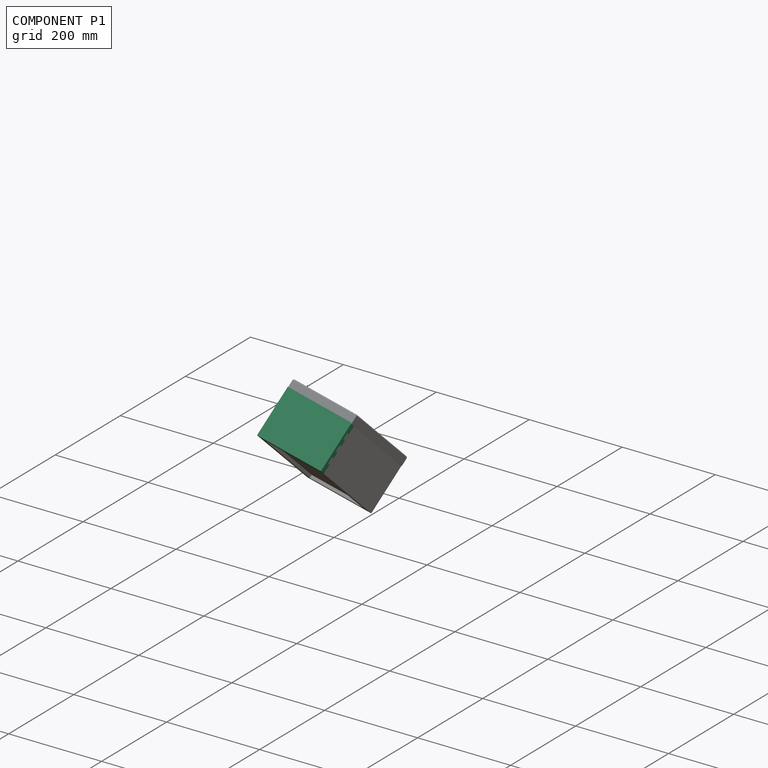
[diagram: component P1 — assembled]
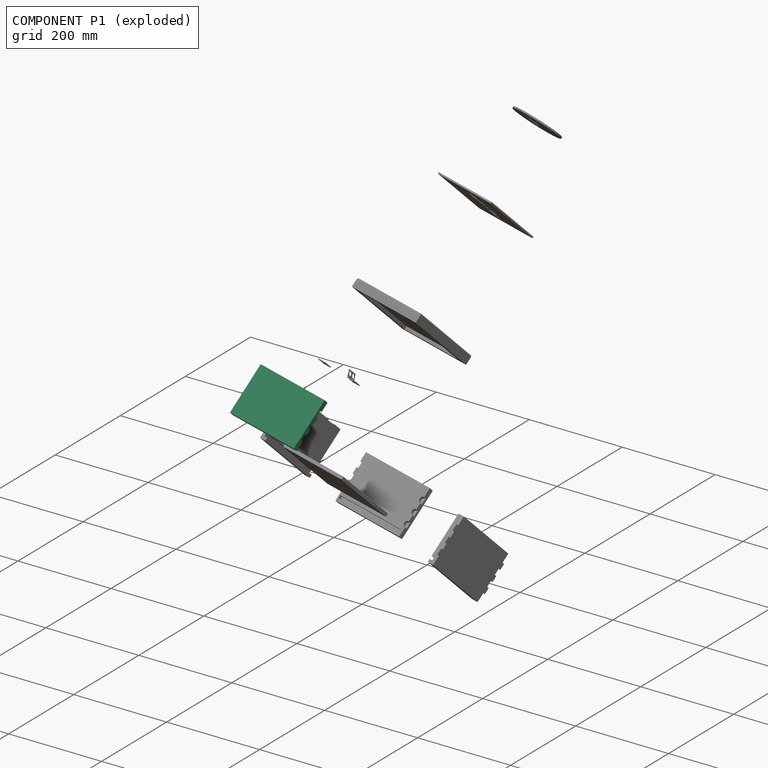
[diagram: component P1 — exploded]
COMPONENT P1 — recipe-attached (CADFS 00580429, mesh-verified: the recipe's output STEP matches this component's geometry to below the mesh-comparison resolution (tessellation chordal tolerance ~0.275 mm)).
Held by: FASTENED mate "Fastened 1" to P0; FASTENED mate "Fastened 2" to P6.
Construction recipe (FeatureScript — the CAD program that rebuilds this solid; sketch coordinates are in the units given by the * unit suffixes, e.g. mm):

FeatureScript 1540;
import(path : "onshape/std/geometry.fs", version : "1540.0");
import(path : "onshape/std/common.fs", version : "1540.0");
const mm = millimeter;
const VERTEX = EntityType.VERTEX;
const EDGE = EntityType.EDGE;
const FACE = EntityType.FACE;
const BODY = EntityType.BODY;
function v(x, y){return vector(x, y);}
function OD(order){return orderDisambiguation(order);}
function OSD(set){return originalSetDisambiguation(set);}
function TD(topology){return topologyDisambiguation(topology);}
function TDD(query){return trueDependencyDisambiguation(query);}
function sQuery(a, b, c) {return sketchEntityQuery(a, b, c);}

annotation { "Feature Type Name" : "Feature", "Feature Type Description" : "" }
export const myFeature = defineFeature(function(context is Context, id is Id, definition is map)
    precondition{}
    {
        {
            var Q0;
            Q0=qCreatedBy(makeId("Front.planeOp"),FACE);
            var sketch = newSketch(context, id + "F0", { "sketchPlane" : qUnion([Q0])});
            skLineSegment(sketch, "E0.bottom", {"start": v(76.2, 50.8) * mm, "end": v(-76.2, 50.8) * mm});
            skLineSegment(sketch, "E0.top", {"start": v(76.2, -50.8) * mm, "end": v(-76.2, -50.8) * mm});
            skLineSegment(sketch, "E0.left", {"start": v(76.2, 50.8) * mm, "end": v(76.2, -50.8) * mm});
            skLineSegment(sketch, "E0.right", {"start": v(-76.2, 50.8) * mm, "end": v(-76.2, -50.8) * mm});
            skPoint(sketch, "E0.middle", {"position": v(0, 0) * mm});
            skSolve(sketch);
        }
        {
            var Q0;
            Q0 = qSketchRegion(id + "F0", true);
            var Q1;
            Q1=makeQuery(id+"F0.imprint","IMPRINT",FACE,{"disambiguationData":[TD([[makeQuery(id+"F0.imprint","IMPRINT",EDGE,{"derivedFrom":sQuery(id+"F0.wireOp",EDGE,"E0.bottom")}),1.0]])]});
            extrude(context, id + "F1", {"entities" : qUnion([Q0, Q1]), "depth" : 12.7 * mm, "offsetDistance" : 25.4 * mm});
        }
        {
            var Q0;
            Q0=makeQuery(id+"F1.opExtrude","CAP_FACE",FACE,{"disambiguationData":[OSD([sQuery(id+"F0.wireOp",EDGE,"E0.bottom"),sQuery(id+"F0.wireOp",EDGE,"E0.top"),sQuery(id+"F0.wireOp",EDGE,"E0.left"),sQuery(id+"F0.wireOp",EDGE,"E0.right")])],"isStart":true});
            var sketch = newSketch(context, id + "F2", { "sketchPlane" : qUnion([Q0])});
            skLineSegment(sketch, "E1.bottom", {"start": v(-73.03, -38.1) * mm, "end": v(73.03, -38.1) * mm});
            skLineSegment(sketch, "E1.top", {"start": v(-73.03, -44.45) * mm, "end": v(73.03, -44.45) * mm});
            skLineSegment(sketch, "E1.left", {"start": v(-73.03, -38.1) * mm, "end": v(-73.03, -44.45) * mm});
            skLineSegment(sketch, "E1.right", {"start": v(73.03, -38.1) * mm, "end": v(73.03, -44.45) * mm});
            skSolve(sketch);
        }
        {
            var Q0;
            Q0 = qSketchRegion(id + "F2", true);
            extrude(context, id + "F3", {"entities" : qUnion([Q0]), "operationType" : NewBodyOperationType.REMOVE, "oppositeDirection" : true, "depth" : 6.35 * mm, "offsetDistance" : 25.4 * mm});
        }
        {
            var Q0;
            Q0=makeQuery(id+"F1.opExtrude","CAP_FACE",FACE,{"disambiguationData":[OSD([sQuery(id+"F0.wireOp",EDGE,"E0.bottom"),sQuery(id+"F0.wireOp",EDGE,"E0.top"),sQuery(id+"F0.wireOp",EDGE,"E0.left"),sQuery(id+"F0.wireOp",EDGE,"E0.right")])],"isStart":true});
            var sketch = newSketch(context, id + "F4", { "sketchPlane" : qUnion([Q0])});
            skArc(sketch, "E2", {"start": v(-76.2, 19.05) * mm, "mid": v(-69.85, 25.4) * mm, "end": v(-76.2, 31.75) * mm});
            skArc(sketch, "E3", {"start": v(-76.2, -6.35) * mm, "mid": v(-69.85, 0) * mm, "end": v(-76.2, 6.35) * mm});
            skArc(sketch, "E4", {"start": v(-76.2, -31.75) * mm, "mid": v(-69.85, -25.4) * mm, "end": v(-76.2, -19.05) * mm});
            skArc(sketch, "E5", {"start": v(76.2, 31.75) * mm, "mid": v(69.85, 25.4) * mm, "end": v(76.2, 19.05) * mm});
            skArc(sketch, "E6", {"start": v(76.2, 6.35) * mm, "mid": v(69.85, 0) * mm, "end": v(76.2, -6.35) * mm});
            skArc(sketch, "E7", {"start": v(76.2, -19.05) * mm, "mid": v(69.85, -25.4) * mm, "end": v(76.2, -31.75) * mm});
            skSolve(sketch);
        }
        {
            var Q0;
            {var subQ0=sQuery(id+"F4.wireOp",EDGE,"E5");Q0=makeQuery(id+"F4.imprint","IMPRINT",FACE,{"disambiguationData":[TD([[makeQuery(id+"F4.imprint","IMPRINT",EDGE,{"derivedFrom":subQ0}),1.0]])]});}
            var Q1;
            {var subQ0=sQuery(id+"F4.wireOp",EDGE,"E6");Q1=makeQuery(id+"F4.imprint","IMPRINT",FACE,{"disambiguationData":[TD([[makeQuery(id+"F4.imprint","IMPRINT",EDGE,{"derivedFrom":subQ0}),1.0]])]});}
            var Q2;
            {var subQ0=sQuery(id+"F4.wireOp",EDGE,"E7");Q2=makeQuery(id+"F4.imprint","IMPRINT",FACE,{"disambiguationData":[TD([[makeQuery(id+"F4.imprint","IMPRINT",EDGE,{"derivedFrom":subQ0}),1.0]])]});}
            var Q3;
            {var subQ0=sQuery(id+"F4.wireOp",EDGE,"E4");Q3=makeQuery(id+"F4.imprint","IMPRINT",FACE,{"disambiguationData":[TD([[makeQuery(id+"F4.imprint","IMPRINT",EDGE,{"derivedFrom":subQ0}),1.0]])]});}
            var Q4;
            {var subQ0=sQuery(id+"F4.wireOp",EDGE,"E3");Q4=makeQuery(id+"F4.imprint","IMPRINT",FACE,{"disambiguationData":[TD([[makeQuery(id+"F4.imprint","IMPRINT",EDGE,{"derivedFrom":subQ0}),1.0]])]});}
            var Q5;
            {var subQ0=sQuery(id+"F4.wireOp",EDGE,"E2");Q5=makeQuery(id+"F4.imprint","IMPRINT",FACE,{"disambiguationData":[TD([[makeQuery(id+"F4.imprint","IMPRINT",EDGE,{"derivedFrom":subQ0}),1.0]])]});}
            extrude(context, id + "F5", {"entities" : qUnion([Q0, Q1, Q2, Q3, Q4, Q5]), "operationType" : NewBodyOperationType.REMOVE, "oppositeDirection" : true, "depth" : 6.35 * mm, "offsetDistance" : 25.4 * mm});
        }
    });
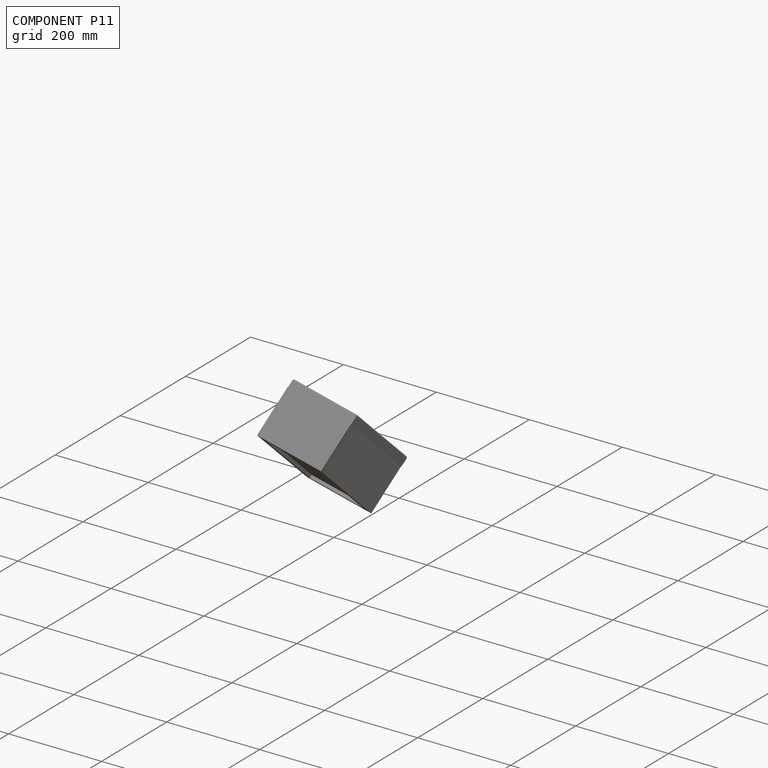
[diagram: component P11 — assembled]
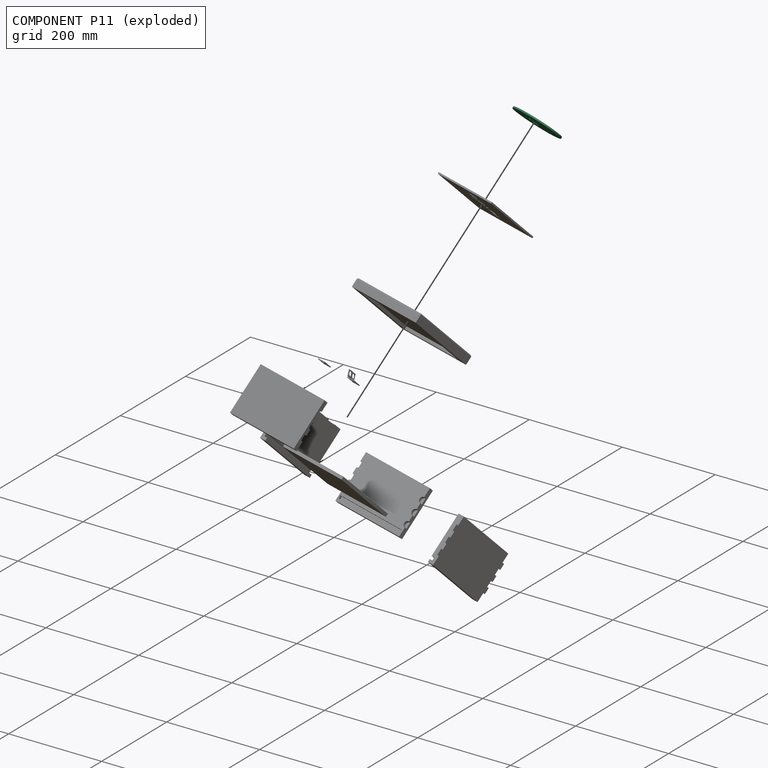
[diagram: component P11 — exploded]
COMPONENT P11 — recipe-attached (CADFS 00580437, mesh-verified: the recipe's output STEP matches this component's geometry to below the mesh-comparison resolution (tessellation chordal tolerance ~0.215 mm)).
Held by: FASTENED mate "Fastened 9" to P3.
Construction recipe (FeatureScript — the CAD program that rebuilds this solid; sketch coordinates are in the units given by the * unit suffixes, e.g. mm):

FeatureScript 1540;
import(path : "onshape/std/geometry.fs", version : "1540.0");
import(path : "onshape/std/common.fs", version : "1540.0");
const mm = millimeter;
const VERTEX = EntityType.VERTEX;
const EDGE = EntityType.EDGE;
const FACE = EntityType.FACE;
const BODY = EntityType.BODY;
function v(x, y){return vector(x, y);}
function OD(order){return orderDisambiguation(order);}
function OSD(set){return originalSetDisambiguation(set);}
function TD(topology){return topologyDisambiguation(topology);}
function TDD(query){return trueDependencyDisambiguation(query);}
function sQuery(a, b, c) {return sketchEntityQuery(a, b, c);}

annotation { "Feature Type Name" : "Feature", "Feature Type Description" : "" }
export const myFeature = defineFeature(function(context is Context, id is Id, definition is map)
    precondition{}
    {
        {
            var Q0;
            Q0=qCreatedBy(makeId("Top.planeOp"),FACE);
            var sketch = newSketch(context, id + "F0", { "sketchPlane" : qUnion([Q0])});
            skCircle(sketch, "E0", {"center": v(0, 0) * mm, "radius": 50.8 * mm});
            skText(sketch, "E1", { "text": "TOP", "fontName": "AllertaStencil-Regular.ttf"});
            const initialGuessF0  = {"E1": [-0.0254, 0, 1, 0, 0.01819]};
            skSetInitialGuess(sketch, initialGuessF0);
            skSolve(sketch);
        }
        {
            var Q0;
            Q0=makeQuery(id+"F0.imprint","IMPRINT",FACE,{"disambiguationData":[TD([[makeQuery(id+"F0.imprint","IMPRINT",EDGE,{"derivedFrom":sQuery(id+"F0.wireOp",EDGE,"E0")}),1.0]])]});
            extrude(context, id + "F1", {"entities" : qUnion([Q0]), "depth" : 3.17 * mm, "offsetDistance" : 25.4 * mm});
        }
    });
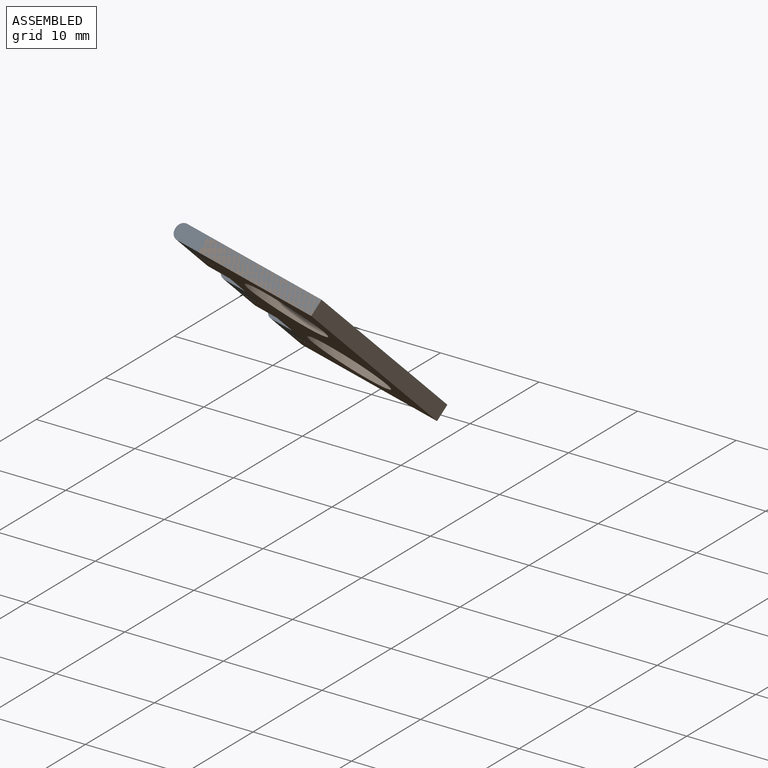
[diagram: subassembly S0 — assembled view]
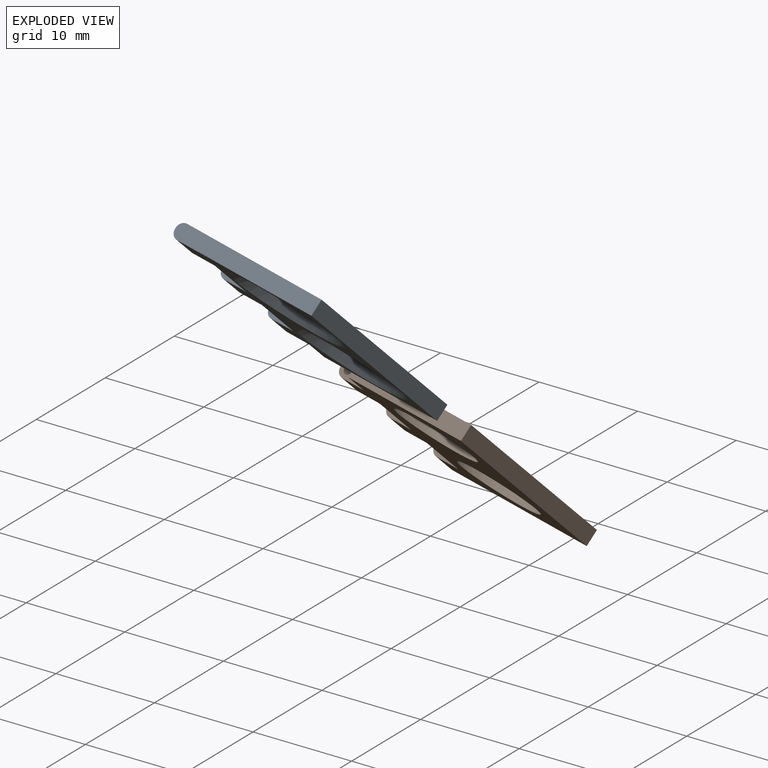
[diagram: subassembly S0 — exploded view]
SUBASSEMBLY S0 TOUR — 2 components, shown here in isolation at its own camera.

INTERNAL MATES
  1. REVOLUTE "Revolute 1": P2 <-> P7, axis (-0.018, 0.744, -0.668) through (48.64, -69.44, 79.94) mm
  2. REVOLUTE "Revolute 1": P2 <-> P7, axis (-0.018, 0.744, -0.668) through (48.64, -69.44, 79.94) mm

ASSEMBLY ORDER (within the subassembly)
  1. P2 — the base component [order heuristic]
  2. P7 [order heuristic]
Order-tag legend:
  [order heuristic] — this assembly is geometrically interlocked (no collision-free removal order exists), so components are listed in mate-graph order; insertion feasibility is not verified.
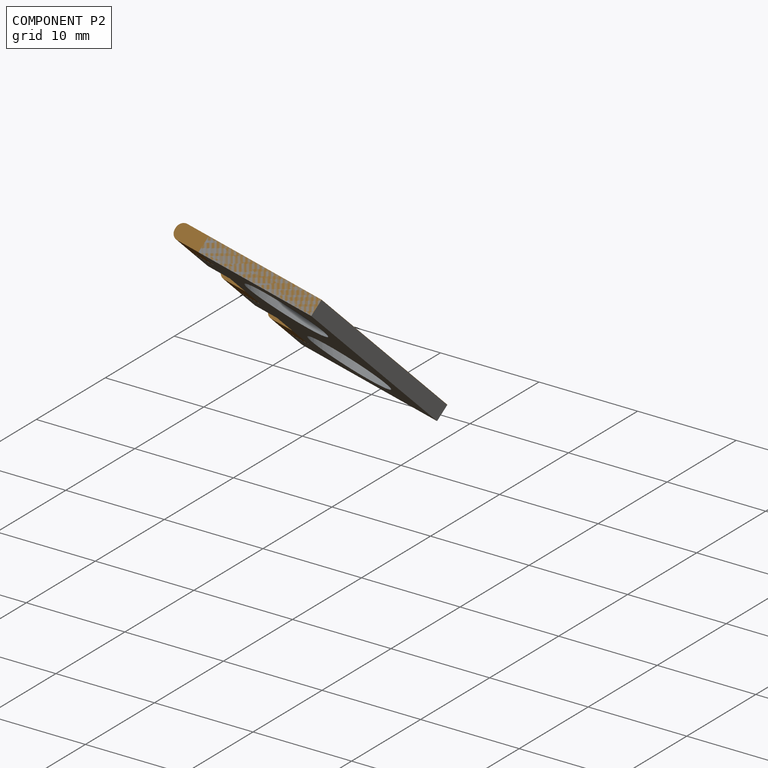
[diagram: component P2 — assembled]
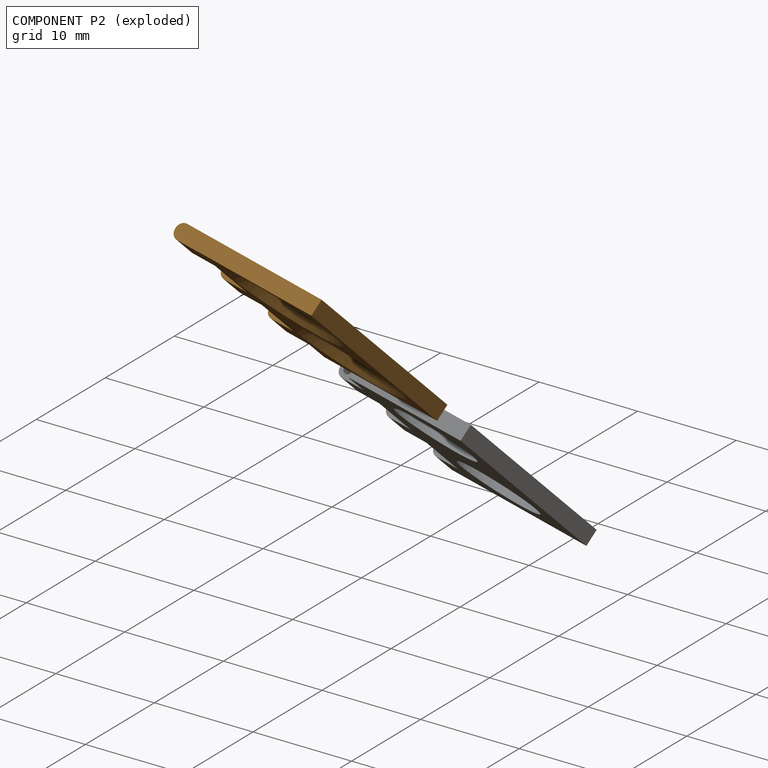
[diagram: component P2 — exploded]
COMPONENT P2 — geometry summary (no construction recipe available for this part):
  bounding box: 25.4 x 15.9 x 1.6 mm
  B-rep topology: 1 solid, 36 faces, 176 edges
  volume: 319 mm^3 (49% of its bounding box)
Held by: REVOLUTE mate "Revolute 1" to P7; REVOLUTE mate "Revolute 1" to P7.
